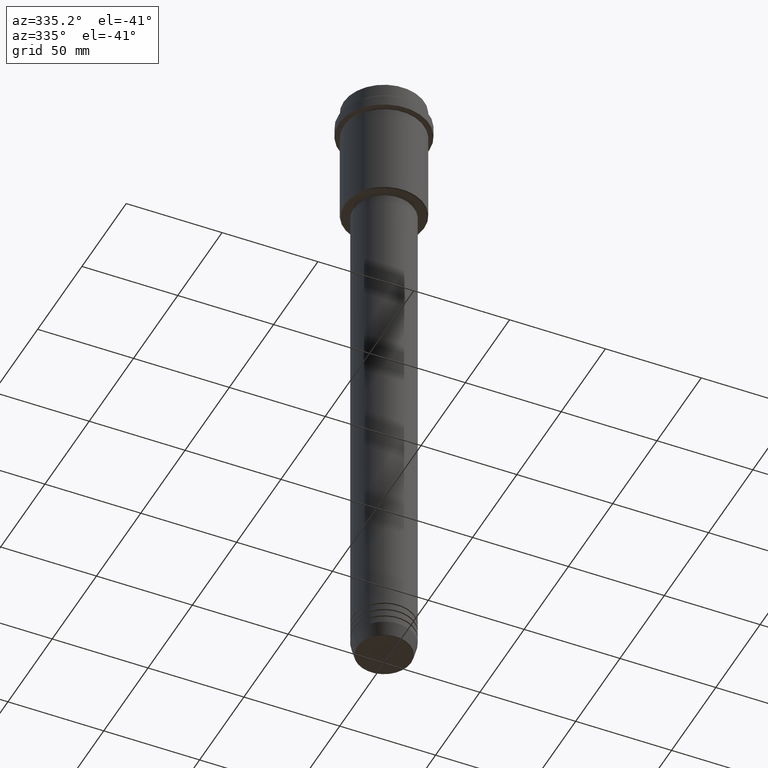
[diagram: clean part render]
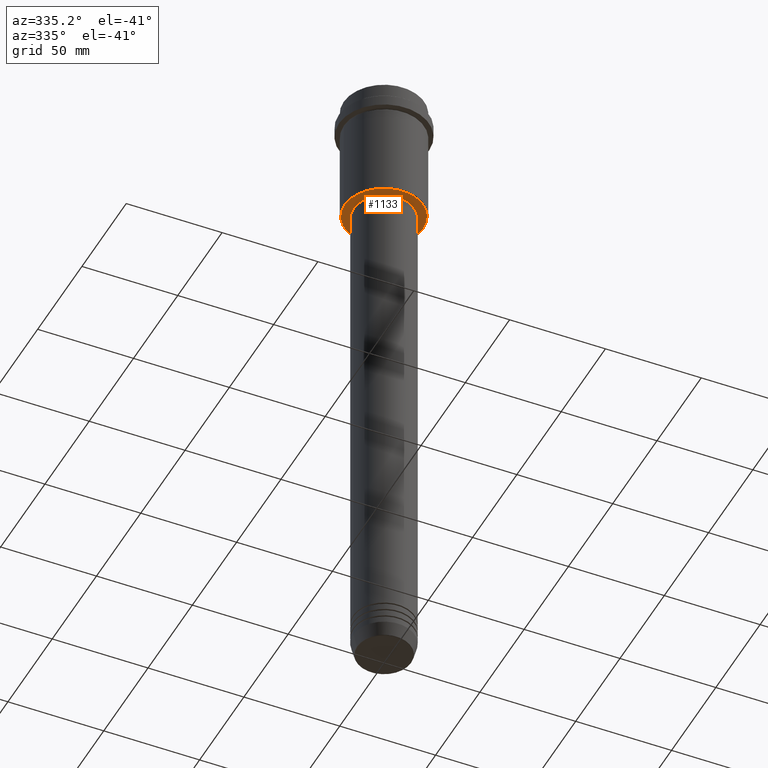
[diagram: same view with one face highlighted and labeled with its STEP entity id]
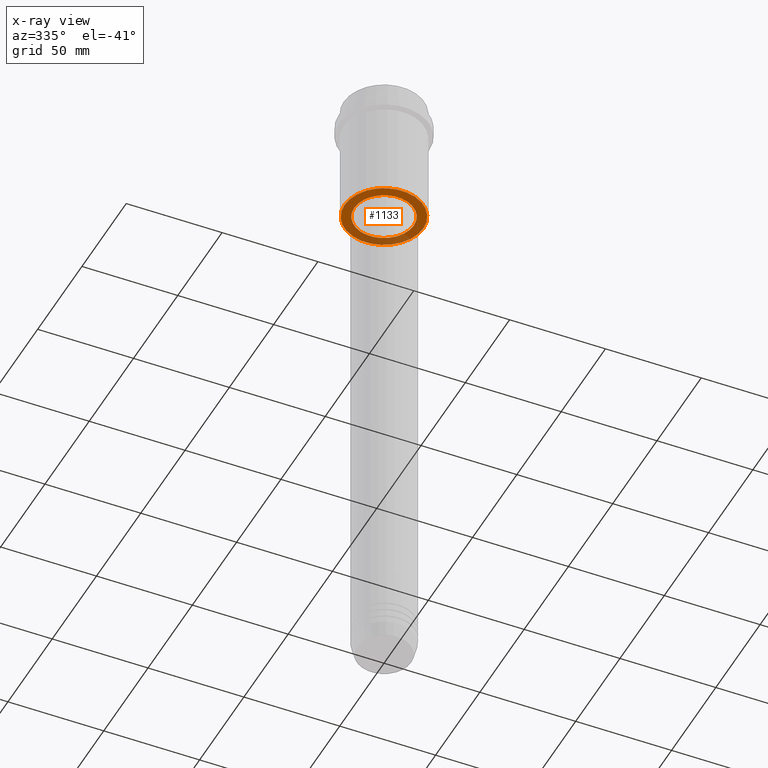
[diagram: x-ray of the same camera — body ghosted, the highlighted face saturated]
A machine part, auxiliary view. The second image highlights one B-rep face of the part: STEP entity #1133.
The next image is the same camera in x-ray: the body ghosted, the highlighted face saturated — about 21% of this face is hidden behind the body in this view.
In plain terms, the highlighted planar face has unit normal (0, 0, -1).
Its self-contained STEP definition (entity closure, byte-faithful):
#10 = CIRCLE ( 'NONE', #1297, 15.50000000000000000 ) ;
#26 = FACE_OUTER_BOUND ( 'NONE', #710, .T. ) ;
#65 = DIRECTION ( 'NONE',  ( 0.000000000000000000, 0.000000000000000000, -1.000000000000000000 ) ) ;
#94 = CARTESIAN_POINT ( 'NONE',  ( -15.50000000000000000, 1.898202538678397557E-15, -64.99999999999997158 ) ) ;
#145 = DIRECTION ( 'NONE',  ( -1.000000000000000000, 0.000000000000000000, 0.000000000000000000 ) ) ;
#150 = CIRCLE ( 'NONE', #1254, 15.50000000000000000 ) ;
#217 = CARTESIAN_POINT ( 'NONE',  ( -20.49999999999996447, 2.541142108230755507E-15, -64.99999999999998579 ) ) ;
#236 = PLANE ( 'NONE',  #856 ) ;
#259 = ORIENTED_EDGE ( 'NONE', *, *, #318, .T. ) ;
#270 = ORIENTED_EDGE ( 'NONE', *, *, #284, .T. ) ;
#284 = EDGE_CURVE ( 'NONE', #1311, #1159, #405, .T. ) ;
#318 = EDGE_CURVE ( 'NONE', #1159, #1311, #955, .T. ) ;
#389 = DIRECTION ( 'NONE',  ( -1.000000000000000000, 0.000000000000000000, -0.000000000000000000 ) ) ;
#398 = CARTESIAN_POINT ( 'NONE',  ( 15.50000000000000000, 0.000000000000000000, -64.99999999999997158 ) ) ;
#405 = CIRCLE ( 'NONE', #730, 20.49999999999996447 ) ;
#462 = EDGE_CURVE ( 'NONE', #814, #526, #150, .T. ) ;
#509 = EDGE_LOOP ( 'NONE', ( #1172, #1372 ) ) ;
#526 = VERTEX_POINT ( 'NONE', #398 ) ;
#562 = DIRECTION ( 'NONE',  ( 0.000000000000000000, 0.000000000000000000, -1.000000000000000000 ) ) ;
#600 = DIRECTION ( 'NONE',  ( -0.000000000000000000, -0.000000000000000000, 1.000000000000000000 ) ) ;
#604 = EDGE_CURVE ( 'NONE', #526, #814, #10, .T. ) ;
#616 = DIRECTION ( 'NONE',  ( 0.000000000000000000, 0.000000000000000000, -1.000000000000000000 ) ) ;
#710 = EDGE_LOOP ( 'NONE', ( #259, #270 ) ) ;
#713 = CARTESIAN_POINT ( 'NONE',  ( 0.000000000000000000, 0.000000000000000000, -64.99999999999997158 ) ) ;
#730 = AXIS2_PLACEMENT_3D ( 'NONE', #941, #616, #145 ) ;
#773 = FACE_BOUND ( 'NONE', #509, .T. ) ;
#801 = DIRECTION ( 'NONE',  ( -1.000000000000000000, 0.000000000000000000, 0.000000000000000000 ) ) ;
#814 = VERTEX_POINT ( 'NONE', #94 ) ;
#856 = AXIS2_PLACEMENT_3D ( 'NONE', #1214, #562, #389 ) ;
#941 = CARTESIAN_POINT ( 'NONE',  ( 0.000000000000000000, 0.000000000000000000, -64.99999999999998579 ) ) ;
#955 = CIRCLE ( 'NONE', #1140, 20.49999999999996447 ) ;
#960 = DIRECTION ( 'NONE',  ( 1.000000000000000000, 0.000000000000000000, 0.000000000000000000 ) ) ;
#1038 = CARTESIAN_POINT ( 'NONE',  ( 20.49999999999996447, 0.000000000000000000, -64.99999999999998579 ) ) ;
#1133 = ADVANCED_FACE ( 'NONE', ( #26, #773 ), #236, .T. ) ;
#1140 = AXIS2_PLACEMENT_3D ( 'NONE', #1361, #65, #801 ) ;
#1151 = DIRECTION ( 'NONE',  ( 1.000000000000000000, 0.000000000000000000, 0.000000000000000000 ) ) ;
#1159 = VERTEX_POINT ( 'NONE', #1038 ) ;
#1172 = ORIENTED_EDGE ( 'NONE', *, *, #604, .T. ) ;
#1179 = CARTESIAN_POINT ( 'NONE',  ( 0.000000000000000000, 0.000000000000000000, -64.99999999999997158 ) ) ;
#1214 = CARTESIAN_POINT ( 'NONE',  ( 0.000000000000000000, 21.00000000000000000, -64.99999999999998579 ) ) ;
#1254 = AXIS2_PLACEMENT_3D ( 'NONE', #1179, #1287, #960 ) ;
#1287 = DIRECTION ( 'NONE',  ( -0.000000000000000000, -0.000000000000000000, 1.000000000000000000 ) ) ;
#1297 = AXIS2_PLACEMENT_3D ( 'NONE', #713, #600, #1151 ) ;
#1311 = VERTEX_POINT ( 'NONE', #217 ) ;
#1361 = CARTESIAN_POINT ( 'NONE',  ( 0.000000000000000000, 0.000000000000000000, -64.99999999999998579 ) ) ;
#1372 = ORIENTED_EDGE ( 'NONE', *, *, #462, .T. ) ;